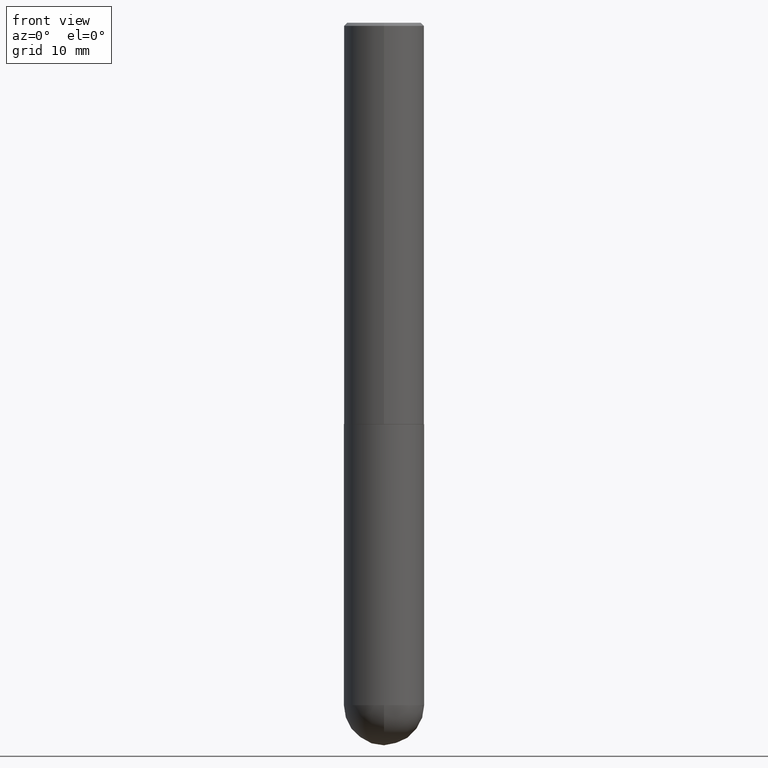
[diagram: clean part render]
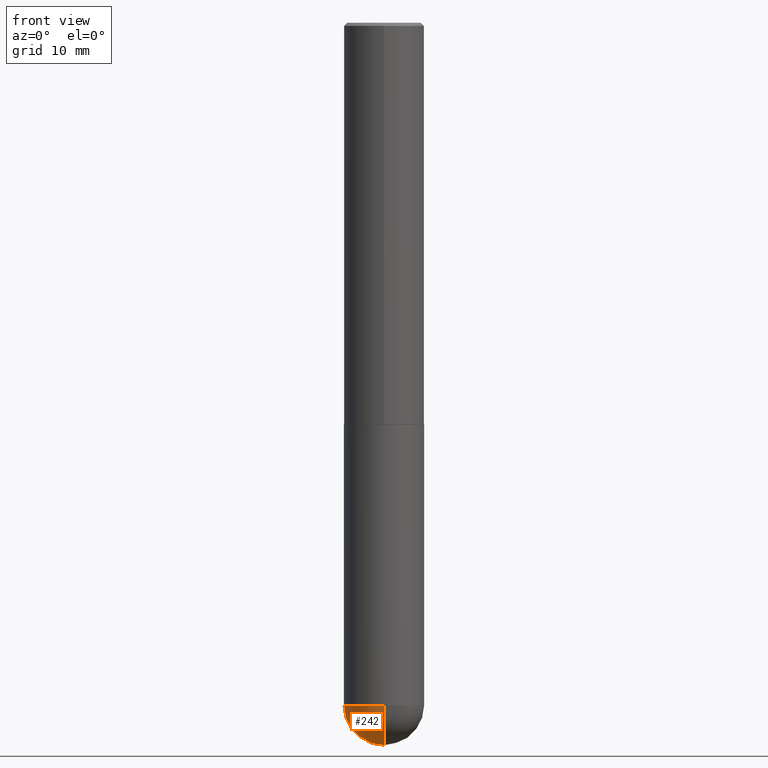
[diagram: same view with one face highlighted and labeled with its STEP entity id]
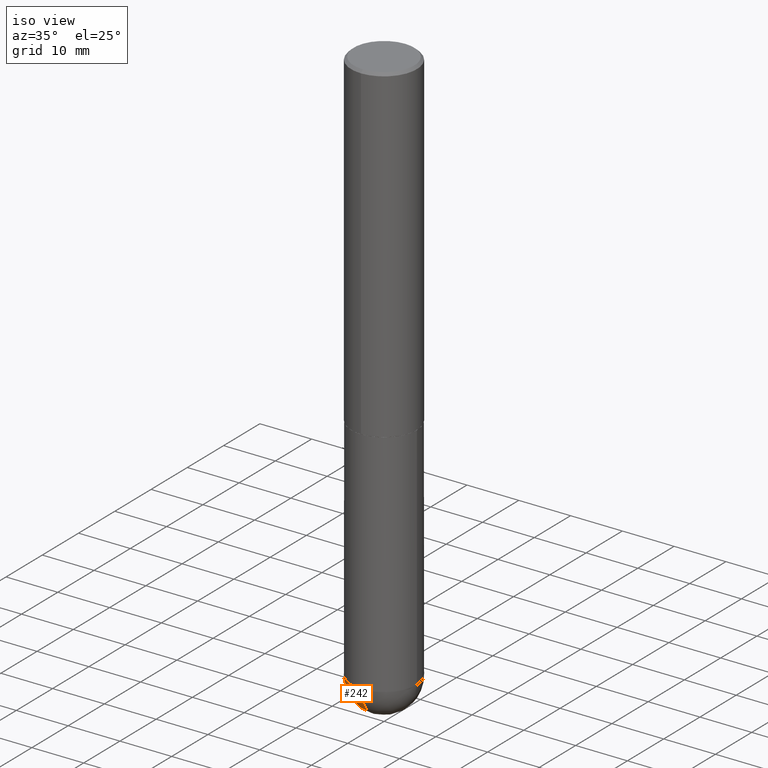
[diagram: same view with one face highlighted and labeled with its STEP entity id]
A machine part, front view. The second image highlights one B-rep face of the part: STEP entity #242.
A second angle (iso view) of the same face is appended — the face is thin or edge-on in the first view.
In plain terms, the highlighted spherical surface has radius 6.35 mm.
Its self-contained STEP definition (entity closure, byte-faithful):
#6 = DIRECTION ( 'NONE',  ( 6.982962677686266711E-15, 1.000000000000000000, 0.000000000000000000 ) ) ;
#15 = CARTESIAN_POINT ( 'NONE',  ( 1.039324242628683054E-28, -1.483879569008337040E-14, -4.250000000000000000 ) ) ;
#17 = AXIS2_PLACEMENT_3D ( 'NONE', #225, #262, #124 ) ;
#20 = EDGE_CURVE ( 'NONE', #41, #278, #381, .T. ) ;
#34 = CARTESIAN_POINT ( 'NONE',  ( 1.745740669421669032E-15, 0.2499999999999849842, -4.250000000000001776 ) ) ;
#37 = EDGE_CURVE ( 'NONE', #52, #41, #57, .T. ) ;
#39 = AXIS2_PLACEMENT_3D ( 'NONE', #333, #269, #6 ) ;
#41 = VERTEX_POINT ( 'NONE', #207 ) ;
#52 = VERTEX_POINT ( 'NONE', #34 ) ;
#57 = CIRCLE ( 'NONE', #66, 0.2500000000000000000 ) ;
#66 = AXIS2_PLACEMENT_3D ( 'NONE', #343, #369, #77 ) ;
#67 = FACE_OUTER_BOUND ( 'NONE', #76, .T. ) ;
#76 = EDGE_LOOP ( 'NONE', ( #197, #293, #314, #148 ) ) ;
#77 = DIRECTION ( 'NONE',  ( 1.000000000000000000, -6.982962677686270655E-15, 0.000000000000000000 ) ) ;
#103 = CARTESIAN_POINT ( 'NONE',  ( 1.006212264837294429E-28, -1.531297805822341912E-14, -4.250000000000000000 ) ) ;
#105 = DIRECTION ( 'NONE',  ( 6.982962677686265922E-15, 1.000000000000000000, -4.370956789862818783E-15 ) ) ;
#106 = EDGE_CURVE ( 'NONE', #358, #278, #395, .T. ) ;
#124 = DIRECTION ( 'NONE',  ( -7.105427357601001859E-15, -1.000000000000000000, 0.000000000000000000 ) ) ;
#139 = CIRCLE ( 'NONE', #39, 0.2500000000000001110 ) ;
#148 = ORIENTED_EDGE ( 'NONE', *, *, #37, .F. ) ;
#149 = DIRECTION ( 'NONE',  ( -2.445468806185136597E-29, 3.491481338843145583E-15, 1.000000000000000000 ) ) ;
#197 = ORIENTED_EDGE ( 'NONE', *, *, #332, .F. ) ;
#201 = CARTESIAN_POINT ( 'NONE',  ( 1.068417942853397052E-28, -1.617054030794486372E-14, -4.500000000000000888 ) ) ;
#205 = SPHERICAL_SURFACE ( 'NONE', #399, 0.2500000000000001110 ) ;
#207 = CARTESIAN_POINT ( 'NONE',  ( -0.2500000000000000000, -1.000739267919536879E-14, -4.250000000000000000 ) ) ;
#225 = CARTESIAN_POINT ( 'NONE',  ( 1.006212264837294429E-28, -1.531297805822341912E-14, -4.250000000000000000 ) ) ;
#242 = ADVANCED_FACE ( 'NONE', ( #67 ), #205, .T. ) ;
#262 = DIRECTION ( 'NONE',  ( -1.000000000000000000, 7.105427357601001070E-15, -4.926315508542082329E-29 ) ) ;
#268 = CARTESIAN_POINT ( 'NONE',  ( -1.776356839400148307E-15, -0.2500000000000151545, -4.249999999999999112 ) ) ;
#269 = DIRECTION ( 'NONE',  ( 1.000000000000000000, -6.982962677686265922E-15, 4.883557194083112340E-29 ) ) ;
#270 = DIRECTION ( 'NONE',  ( -1.000000000000000000, 6.982962677686265922E-15, -4.883557194083113462E-29 ) ) ;
#273 = DIRECTION ( 'NONE',  ( 1.000000000000000000, -6.982962677686270655E-15, 0.000000000000000000 ) ) ;
#278 = VERTEX_POINT ( 'NONE', #268 ) ;
#293 = ORIENTED_EDGE ( 'NONE', *, *, #106, .T. ) ;
#296 = AXIS2_PLACEMENT_3D ( 'NONE', #15, #149, #273 ) ;
#314 = ORIENTED_EDGE ( 'NONE', *, *, #20, .F. ) ;
#332 = EDGE_CURVE ( 'NONE', #358, #52, #139, .T. ) ;
#333 = CARTESIAN_POINT ( 'NONE',  ( 1.006212264837294429E-28, -1.531297805822341912E-14, -4.250000000000000000 ) ) ;
#343 = CARTESIAN_POINT ( 'NONE',  ( 1.039324242628683054E-28, -1.483879569008337040E-14, -4.250000000000000000 ) ) ;
#358 = VERTEX_POINT ( 'NONE', #201 ) ;
#369 = DIRECTION ( 'NONE',  ( -2.445468806185136597E-29, 3.491481338843145583E-15, 1.000000000000000000 ) ) ;
#381 = CIRCLE ( 'NONE', #296, 0.2500000000000000000 ) ;
#395 = CIRCLE ( 'NONE', #17, 0.2500000000000001110 ) ;
#399 = AXIS2_PLACEMENT_3D ( 'NONE', #103, #270, #105 ) ;